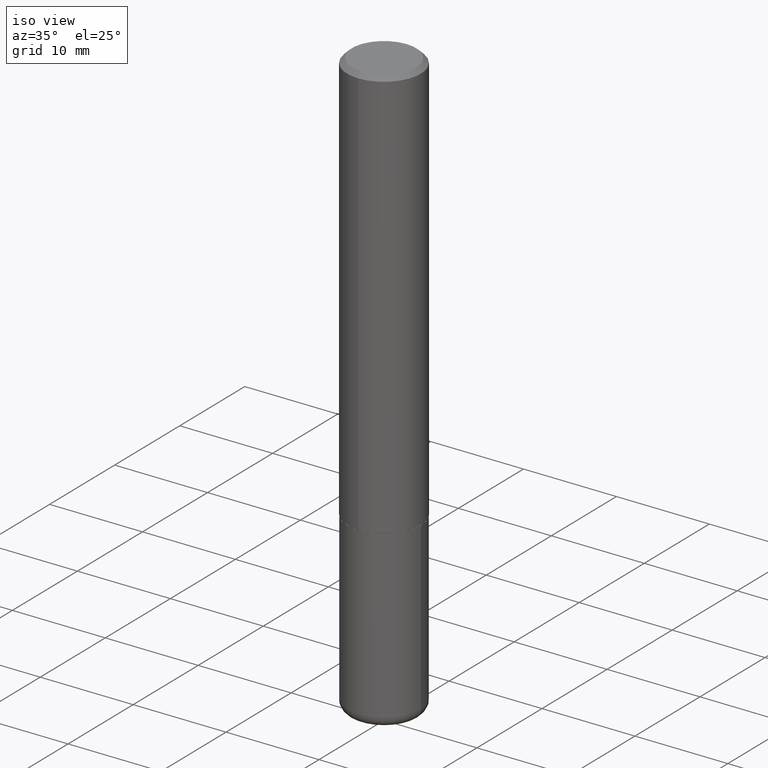
[diagram: clean part render]
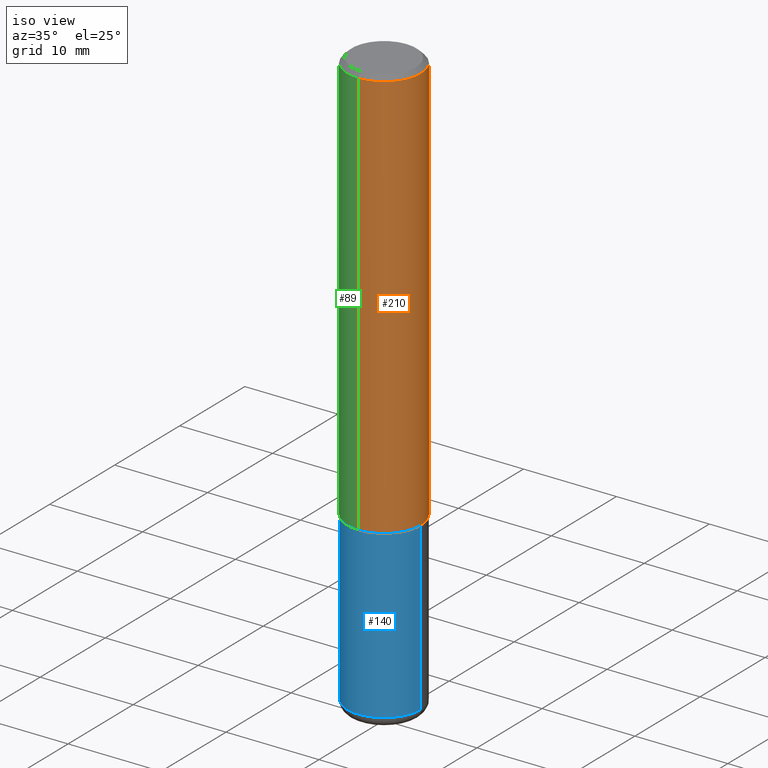
[diagram: same view with three faces highlighted in distinct colors, each labeled with its STEP entity id]
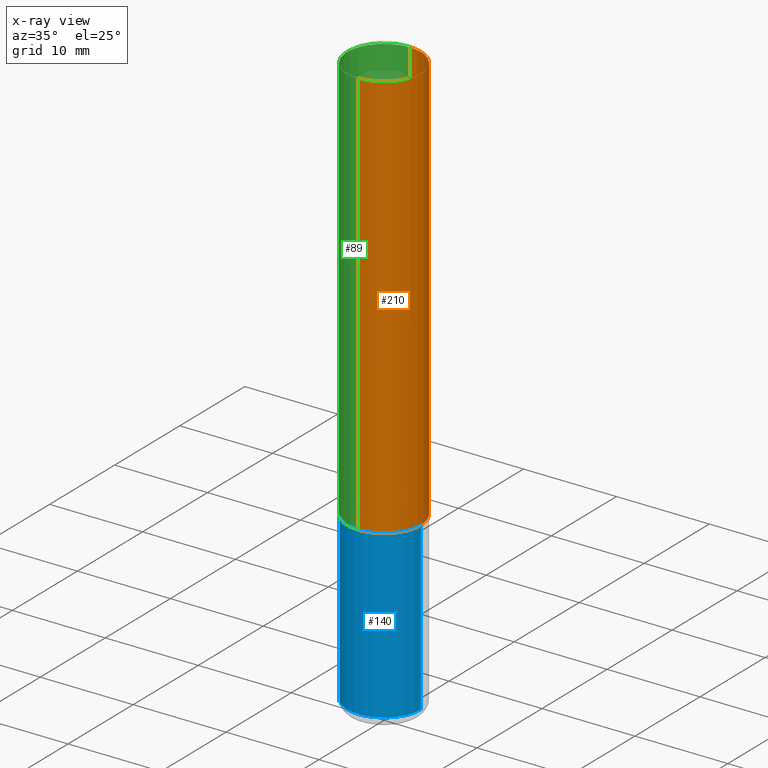
[diagram: x-ray of the same camera — body ghosted, the three highlighted faces saturated]
A machine part, iso view with three faces highlighted in distinct colors.
The next image is the same camera in x-ray (body ghosted, the three faces saturated) — at least one of them is partly hidden behind the body in this view.
Their STEP definitions:

[orange] entity #210 — the highlighted cylindrical surface (partial cylindrical patch) has radius 3.9688 mm, axis along (-0, 0, 1).
#11 = VECTOR ( 'NONE', #77, 39.37007874015748143 ) ;
#17 = AXIS2_PLACEMENT_3D ( 'NONE', #245, #343, #253 ) ;
#52 = CARTESIAN_POINT ( 'NONE',  ( 1.091087918388479765E-15, 0.1562499999999999722, -0.02000000000000057981 ) ) ;
#57 = VERTEX_POINT ( 'NONE', #52 ) ;
#65 = EDGE_CURVE ( 'NONE', #292, #57, #215, .T. ) ;
#69 = DIRECTION ( 'NONE',  ( -6.982962677686265922E-15, -1.000000000000000000, 3.494168841381722563E-15 ) ) ;
#71 = VECTOR ( 'NONE', #179, 39.37007874015748143 ) ;
#76 = EDGE_LOOP ( 'NONE', ( #273, #246, #371, #354 ) ) ;
#77 = DIRECTION ( 'NONE',  ( -2.443592133192829145E-29, 3.494168841381722958E-15, 1.000000000000000000 ) ) ;
#127 = CARTESIAN_POINT ( 'NONE',  ( -1.071952812151801412E-15, -0.1562500000000001110, -0.01999999999999948694 ) ) ;
#171 = CARTESIAN_POINT ( 'NONE',  ( 1.110223024625157329E-15, 0.1562500000000001388, -5.459638814658946559E-16 ) ) ;
#178 = CARTESIAN_POINT ( 'NONE',  ( -1.091087918388479962E-15, -0.1562500000000001388, 5.459638814658946559E-16 ) ) ;
#179 = DIRECTION ( 'NONE',  ( -2.443592133192829145E-29, 3.494168841381722958E-15, 1.000000000000000000 ) ) ;
#190 = DIRECTION ( 'NONE',  ( -2.443592133192829145E-29, 3.494168841381722958E-15, 1.000000000000000000 ) ) ;
#196 = AXIS2_PLACEMENT_3D ( 'NONE', #227, #190, #317 ) ;
#210 = ADVANCED_FACE ( 'NONE', ( #395 ), #240, .T. ) ;
#213 = CARTESIAN_POINT ( 'NONE',  ( -1.091087918388437758E-15, -0.1562500000000063283, -1.748999999999999666 ) ) ;
#215 = CIRCLE ( 'NONE', #196, 0.1562500000000000278 ) ;
#227 = CARTESIAN_POINT ( 'NONE',  ( 4.887184266385666173E-31, -6.988337682763458192E-17, -0.02000000000000003511 ) ) ;
#240 = CYLINDRICAL_SURFACE ( 'NONE', #319, 0.1562500000000001388 ) ;
#245 = CARTESIAN_POINT ( 'NONE',  ( 4.273842640954258805E-29, -6.111301303576634099E-15, -1.749000000000000110 ) ) ;
#246 = ORIENTED_EDGE ( 'NONE', *, *, #272, .T. ) ;
#253 = DIRECTION ( 'NONE',  ( -6.982962677686265922E-15, -1.000000000000000000, 3.496765431890251792E-15 ) ) ;
#272 = EDGE_CURVE ( 'NONE', #282, #57, #305, .T. ) ;
#273 = ORIENTED_EDGE ( 'NONE', *, *, #286, .T. ) ;
#276 = CIRCLE ( 'NONE', #17, 0.1562500000000002220 ) ;
#282 = VERTEX_POINT ( 'NONE', #307 ) ;
#286 = EDGE_CURVE ( 'NONE', #374, #282, #276, .T. ) ;
#292 = VERTEX_POINT ( 'NONE', #127 ) ;
#294 = DIRECTION ( 'NONE',  ( -2.443592133192829145E-29, 3.494168841381722958E-15, 1.000000000000000000 ) ) ;
#305 = LINE ( 'NONE', #171, #71 ) ;
#307 = CARTESIAN_POINT ( 'NONE',  ( 1.110223024625179220E-15, 0.1562499999999940881, -1.749000000000000554 ) ) ;
#315 = EDGE_CURVE ( 'NONE', #374, #292, #397, .T. ) ;
#317 = DIRECTION ( 'NONE',  ( -6.982962677686266711E-15, -1.000000000000000000, 3.496765431890256131E-15 ) ) ;
#319 = AXIS2_PLACEMENT_3D ( 'NONE', #358, #294, #69 ) ;
#343 = DIRECTION ( 'NONE',  ( -2.443592133192829145E-29, 3.494168841381722958E-15, 1.000000000000000000 ) ) ;
#354 = ORIENTED_EDGE ( 'NONE', *, *, #315, .F. ) ;
#358 = CARTESIAN_POINT ( 'NONE',  ( 0.000000000000000000, 0.000000000000000000, 0.000000000000000000 ) ) ;
#371 = ORIENTED_EDGE ( 'NONE', *, *, #65, .F. ) ;
#374 = VERTEX_POINT ( 'NONE', #213 ) ;
#395 = FACE_OUTER_BOUND ( 'NONE', #76, .T. ) ;
#397 = LINE ( 'NONE', #178, #11 ) ;

[blue] entity #140 — the highlighted cylindrical surface (partial cylindrical patch) has radius 3.9688 mm, axis along (-0, 0, 1).
#1 = FACE_OUTER_BOUND ( 'NONE', #14, .T. ) ;
#2 = DIRECTION ( 'NONE',  ( -2.445468806185136597E-29, 3.491481338843145583E-15, 1.000000000000000000 ) ) ;
#14 = EDGE_LOOP ( 'NONE', ( #168, #80, #311, #250 ) ) ;
#22 = VECTOR ( 'NONE', #366, 39.37007874015748143 ) ;
#28 = DIRECTION ( 'NONE',  ( -2.445468806185136597E-29, 3.491481338843145583E-15, 1.000000000000000000 ) ) ;
#37 = CIRCLE ( 'NONE', #267, 0.1562500000000000000 ) ;
#47 = VERTEX_POINT ( 'NONE', #278 ) ;
#78 = EDGE_CURVE ( 'NONE', #310, #209, #301, .T. ) ;
#80 = ORIENTED_EDGE ( 'NONE', *, *, #409, .T. ) ;
#99 = CARTESIAN_POINT ( 'NONE',  ( 0.1562500000000000000, -7.201180261363985422E-15, -1.750000000000000222 ) ) ;
#129 = LINE ( 'NONE', #200, #224 ) ;
#139 = CARTESIAN_POINT ( 'NONE',  ( -0.1562500000000000000, 1.110223024625156540E-15, -7.685836078523291160E-30 ) ) ;
#140 = ADVANCED_FACE ( 'NONE', ( #1 ), #322, .T. ) ;
#148 = AXIS2_PLACEMENT_3D ( 'NONE', #270, #2, #264 ) ;
#155 = CARTESIAN_POINT ( 'NONE',  ( 0.1562500000000000000, -9.662674605248401695E-15, -2.455000000000000071 ) ) ;
#162 = DIRECTION ( 'NONE',  ( -2.445468806185136877E-29, 3.491481338843145188E-15, 1.000000000000000000 ) ) ;
#168 = ORIENTED_EDGE ( 'NONE', *, *, #365, .F. ) ;
#182 = DIRECTION ( 'NONE',  ( 1.000000000000000000, -6.982962677686269077E-15, 0.000000000000000000 ) ) ;
#200 = CARTESIAN_POINT ( 'NONE',  ( 0.1562500000000000000, -1.091087918388479174E-15, 7.619026212181150377E-30 ) ) ;
#203 = DIRECTION ( 'NONE',  ( 1.000000000000000000, -6.982962677686266711E-15, 4.876176775795936353E-29 ) ) ;
#209 = VERTEX_POINT ( 'NONE', #99 ) ;
#224 = VECTOR ( 'NONE', #162, 39.37007874015748143 ) ;
#235 = EDGE_CURVE ( 'NONE', #406, #209, #129, .T. ) ;
#250 = ORIENTED_EDGE ( 'NONE', *, *, #78, .F. ) ;
#255 = CARTESIAN_POINT ( 'NONE',  ( 6.003625919184510659E-29, -8.571586686859923311E-15, -2.455000000000000071 ) ) ;
#264 = DIRECTION ( 'NONE',  ( 1.000000000000000000, -6.982962677686269077E-15, 0.000000000000000000 ) ) ;
#267 = AXIS2_PLACEMENT_3D ( 'NONE', #255, #349, #182 ) ;
#268 = CARTESIAN_POINT ( 'NONE',  ( 0.000000000000000000, 0.000000000000000000, 0.000000000000000000 ) ) ;
#270 = CARTESIAN_POINT ( 'NONE',  ( 4.279570410823989044E-29, -6.110092342975505460E-15, -1.750000000000000222 ) ) ;
#275 = CARTESIAN_POINT ( 'NONE',  ( -0.1562500000000000000, -6.230616490292557845E-15, -1.750000000000000222 ) ) ;
#278 = CARTESIAN_POINT ( 'NONE',  ( -0.1562500000000000000, -7.461363662234766770E-15, -2.455000000000000071 ) ) ;
#301 = CIRCLE ( 'NONE', #148, 0.1562500000000000000 ) ;
#310 = VERTEX_POINT ( 'NONE', #275 ) ;
#311 = ORIENTED_EDGE ( 'NONE', *, *, #235, .T. ) ;
#322 = CYLINDRICAL_SURFACE ( 'NONE', #384, 0.1562500000000000000 ) ;
#335 = LINE ( 'NONE', #139, #22 ) ;
#349 = DIRECTION ( 'NONE',  ( -2.445468806185136597E-29, 3.491481338843145583E-15, 1.000000000000000000 ) ) ;
#365 = EDGE_CURVE ( 'NONE', #47, #310, #335, .T. ) ;
#366 = DIRECTION ( 'NONE',  ( -2.445468806185136877E-29, 3.491481338843145188E-15, 1.000000000000000000 ) ) ;
#384 = AXIS2_PLACEMENT_3D ( 'NONE', #268, #28, #203 ) ;
#406 = VERTEX_POINT ( 'NONE', #155 ) ;
#409 = EDGE_CURVE ( 'NONE', #47, #406, #37, .T. ) ;

[green] entity #89 — the highlighted cylindrical surface (partial cylindrical patch) has radius 3.9688 mm, axis along (-0, 0, 1).
#3 = DIRECTION ( 'NONE',  ( -6.982962677686266711E-15, -1.000000000000000000, 3.496765431890256131E-15 ) ) ;
#11 = VECTOR ( 'NONE', #77, 39.37007874015748143 ) ;
#40 = AXIS2_PLACEMENT_3D ( 'NONE', #370, #118, #181 ) ;
#46 = ORIENTED_EDGE ( 'NONE', *, *, #225, .F. ) ;
#50 = EDGE_CURVE ( 'NONE', #282, #374, #376, .T. ) ;
#52 = CARTESIAN_POINT ( 'NONE',  ( 1.091087918388479765E-15, 0.1562499999999999722, -0.02000000000000057981 ) ) ;
#56 = AXIS2_PLACEMENT_3D ( 'NONE', #300, #61, #3 ) ;
#57 = VERTEX_POINT ( 'NONE', #52 ) ;
#61 = DIRECTION ( 'NONE',  ( -2.443592133192829145E-29, 3.494168841381722958E-15, 1.000000000000000000 ) ) ;
#67 = DIRECTION ( 'NONE',  ( -6.982962677686265922E-15, -1.000000000000000000, 3.494168841381722563E-15 ) ) ;
#70 = AXIS2_PLACEMENT_3D ( 'NONE', #361, #167, #67 ) ;
#71 = VECTOR ( 'NONE', #179, 39.37007874015748143 ) ;
#75 = EDGE_LOOP ( 'NONE', ( #364, #173, #121, #46 ) ) ;
#77 = DIRECTION ( 'NONE',  ( -2.443592133192829145E-29, 3.494168841381722958E-15, 1.000000000000000000 ) ) ;
#89 = ADVANCED_FACE ( 'NONE', ( #363 ), #231, .T. ) ;
#118 = DIRECTION ( 'NONE',  ( -2.443592133192829145E-29, 3.494168841381722958E-15, 1.000000000000000000 ) ) ;
#121 = ORIENTED_EDGE ( 'NONE', *, *, #315, .T. ) ;
#127 = CARTESIAN_POINT ( 'NONE',  ( -1.071952812151801412E-15, -0.1562500000000001110, -0.01999999999999948694 ) ) ;
#167 = DIRECTION ( 'NONE',  ( -2.443592133192829145E-29, 3.494168841381722958E-15, 1.000000000000000000 ) ) ;
#171 = CARTESIAN_POINT ( 'NONE',  ( 1.110223024625157329E-15, 0.1562500000000001388, -5.459638814658946559E-16 ) ) ;
#173 = ORIENTED_EDGE ( 'NONE', *, *, #50, .T. ) ;
#178 = CARTESIAN_POINT ( 'NONE',  ( -1.091087918388479962E-15, -0.1562500000000001388, 5.459638814658946559E-16 ) ) ;
#179 = DIRECTION ( 'NONE',  ( -2.443592133192829145E-29, 3.494168841381722958E-15, 1.000000000000000000 ) ) ;
#181 = DIRECTION ( 'NONE',  ( -6.982962677686265922E-15, -1.000000000000000000, 3.496765431890251792E-15 ) ) ;
#213 = CARTESIAN_POINT ( 'NONE',  ( -1.091087918388437758E-15, -0.1562500000000063283, -1.748999999999999666 ) ) ;
#225 = EDGE_CURVE ( 'NONE', #57, #292, #247, .T. ) ;
#231 = CYLINDRICAL_SURFACE ( 'NONE', #70, 0.1562500000000001388 ) ;
#247 = CIRCLE ( 'NONE', #56, 0.1562500000000000278 ) ;
#272 = EDGE_CURVE ( 'NONE', #282, #57, #305, .T. ) ;
#282 = VERTEX_POINT ( 'NONE', #307 ) ;
#292 = VERTEX_POINT ( 'NONE', #127 ) ;
#300 = CARTESIAN_POINT ( 'NONE',  ( 4.887184266385666173E-31, -6.988337682763458192E-17, -0.02000000000000003511 ) ) ;
#305 = LINE ( 'NONE', #171, #71 ) ;
#307 = CARTESIAN_POINT ( 'NONE',  ( 1.110223024625179220E-15, 0.1562499999999940881, -1.749000000000000554 ) ) ;
#315 = EDGE_CURVE ( 'NONE', #374, #292, #397, .T. ) ;
#361 = CARTESIAN_POINT ( 'NONE',  ( 0.000000000000000000, 0.000000000000000000, 0.000000000000000000 ) ) ;
#363 = FACE_OUTER_BOUND ( 'NONE', #75, .T. ) ;
#364 = ORIENTED_EDGE ( 'NONE', *, *, #272, .F. ) ;
#370 = CARTESIAN_POINT ( 'NONE',  ( 4.273842640954258805E-29, -6.111301303576634099E-15, -1.749000000000000110 ) ) ;
#374 = VERTEX_POINT ( 'NONE', #213 ) ;
#376 = CIRCLE ( 'NONE', #40, 0.1562500000000002220 ) ;
#397 = LINE ( 'NONE', #178, #11 ) ;